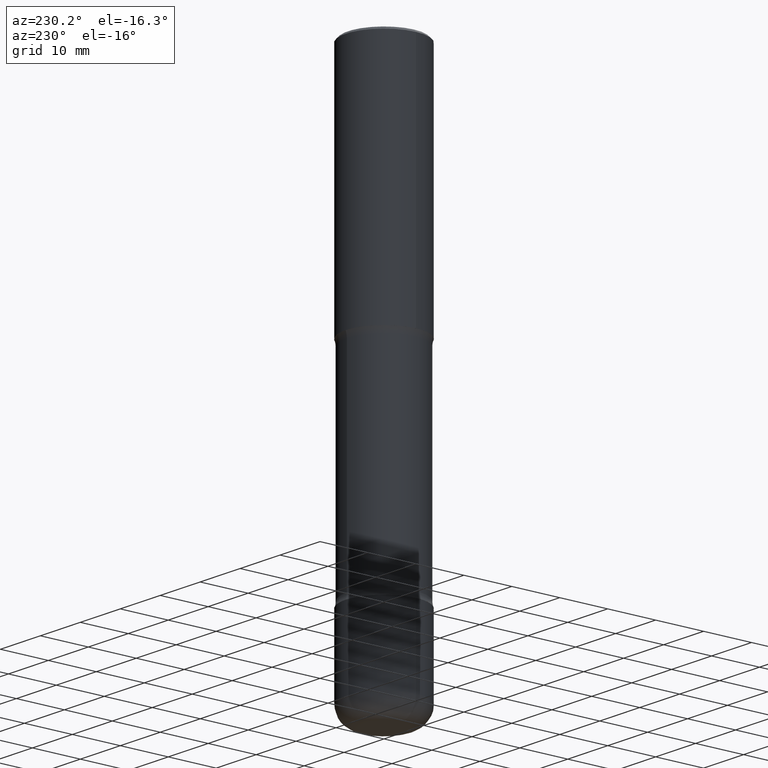
[diagram: clean part render]
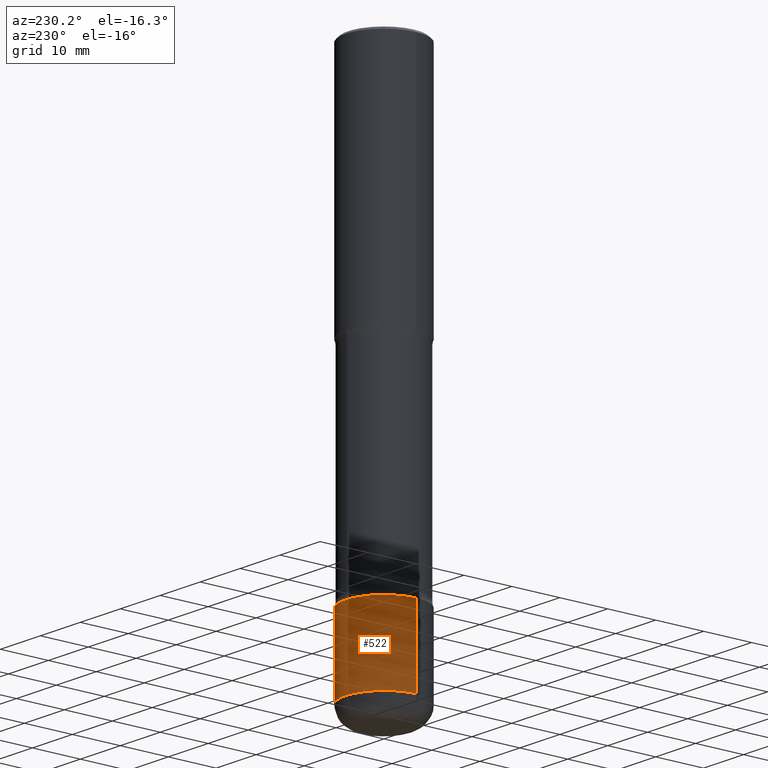
[diagram: same view with one face highlighted and labeled with its STEP entity id]
A machine part, auxiliary view. The second image highlights one B-rep face of the part: STEP entity #522.
In plain terms, the highlighted cylindrical surface (partial cylindrical patch) has radius 7.9997 mm, axis along (-0, 0, 1).
Its self-contained STEP definition (entity closure, byte-faithful):
#2 = EDGE_CURVE ( 'NONE', #549, #256, #137, .T. ) ;
#22 = AXIS2_PLACEMENT_3D ( 'NONE', #374, #105, #534 ) ;
#82 = ORIENTED_EDGE ( 'NONE', *, *, #307, .F. ) ;
#88 = CIRCLE ( 'NONE', #22, 0.3149500000000002298 ) ;
#105 = DIRECTION ( 'NONE',  ( -2.445468806185136597E-29, 3.491481338843145583E-15, 1.000000000000000000 ) ) ;
#118 = DIRECTION ( 'NONE',  ( -2.445468806185136877E-29, 3.491481338843145188E-15, 1.000000000000000000 ) ) ;
#124 = DIRECTION ( 'NONE',  ( -2.445468806185136597E-29, 3.491481338843145583E-15, 1.000000000000000000 ) ) ;
#132 = VERTEX_POINT ( 'NONE', #153 ) ;
#136 = ORIENTED_EDGE ( 'NONE', *, *, #518, .T. ) ;
#137 = CIRCLE ( 'NONE', #468, 0.3149500000000002853 ) ;
#148 = VECTOR ( 'NONE', #118, 39.37007874015748143 ) ;
#153 = CARTESIAN_POINT ( 'NONE',  ( -0.3149500000000002298, -1.192062620493334568E-14, -3.740200000000000191 ) ) ;
#165 = LINE ( 'NONE', #242, #148 ) ;
#169 = DIRECTION ( 'NONE',  ( 1.000000000000000000, -6.982962677686267499E-15, 4.876176775795936353E-29 ) ) ;
#205 = ORIENTED_EDGE ( 'NONE', *, *, #404, .F. ) ;
#207 = CARTESIAN_POINT ( 'NONE',  ( 0.3149500000000002298, -1.525812259887842581E-14, -3.740200000000000191 ) ) ;
#208 = EDGE_LOOP ( 'NONE', ( #296, #136, #205, #82 ) ) ;
#222 = LINE ( 'NONE', #440, #410 ) ;
#242 = CARTESIAN_POINT ( 'NONE',  ( 0.3149500000000002853, -2.199284095337291843E-15, 1.535751875536931531E-29 ) ) ;
#256 = VERTEX_POINT ( 'NONE', #443 ) ;
#263 = DIRECTION ( 'NONE',  ( -2.445468806185136877E-29, 3.491481338843145188E-15, 1.000000000000000000 ) ) ;
#293 = VERTEX_POINT ( 'NONE', #207 ) ;
#296 = ORIENTED_EDGE ( 'NONE', *, *, #2, .T. ) ;
#299 = CYLINDRICAL_SURFACE ( 'NONE', #361, 0.3149500000000002853 ) ;
#302 = CARTESIAN_POINT ( 'NONE',  ( 0.3149500000000001743, -1.745740669421572357E-14, -4.370100000000000762 ) ) ;
#307 = EDGE_CURVE ( 'NONE', #549, #293, #165, .T. ) ;
#361 = AXIS2_PLACEMENT_3D ( 'NONE', #392, #124, #169 ) ;
#372 = DIRECTION ( 'NONE',  ( 1.000000000000000000, -6.982962677686263555E-15, 0.000000000000000000 ) ) ;
#374 = CARTESIAN_POINT ( 'NONE',  ( 9.146542428893648262E-29, -1.305883850354113437E-14, -3.740200000000000191 ) ) ;
#392 = CARTESIAN_POINT ( 'NONE',  ( 0.000000000000000000, 0.000000000000000000, 0.000000000000000000 ) ) ;
#404 = EDGE_CURVE ( 'NONE', #293, #132, #88, .T. ) ;
#410 = VECTOR ( 'NONE', #263, 39.37007874015748143 ) ;
#440 = CARTESIAN_POINT ( 'NONE',  ( -0.3149500000000002853, 2.237854346276437562E-15, -1.549218606675783797E-29 ) ) ;
#443 = CARTESIAN_POINT ( 'NONE',  ( -0.3149500000000001743, -1.302026825260199614E-14, -4.370100000000000762 ) ) ;
#451 = DIRECTION ( 'NONE',  ( -2.445468806185136597E-29, 3.491481338843145583E-15, 1.000000000000000000 ) ) ;
#468 = AXIS2_PLACEMENT_3D ( 'NONE', #530, #451, #372 ) ;
#518 = EDGE_CURVE ( 'NONE', #256, #132, #222, .T. ) ;
#522 = ADVANCED_FACE ( 'NONE', ( #544 ), #299, .T. ) ;
#530 = CARTESIAN_POINT ( 'NONE',  ( 1.068694322990966674E-28, -1.525812259887843213E-14, -4.370100000000000762 ) ) ;
#534 = DIRECTION ( 'NONE',  ( 1.000000000000000000, -6.982962677686264344E-15, 0.000000000000000000 ) ) ;
#544 = FACE_OUTER_BOUND ( 'NONE', #208, .T. ) ;
#549 = VERTEX_POINT ( 'NONE', #302 ) ;